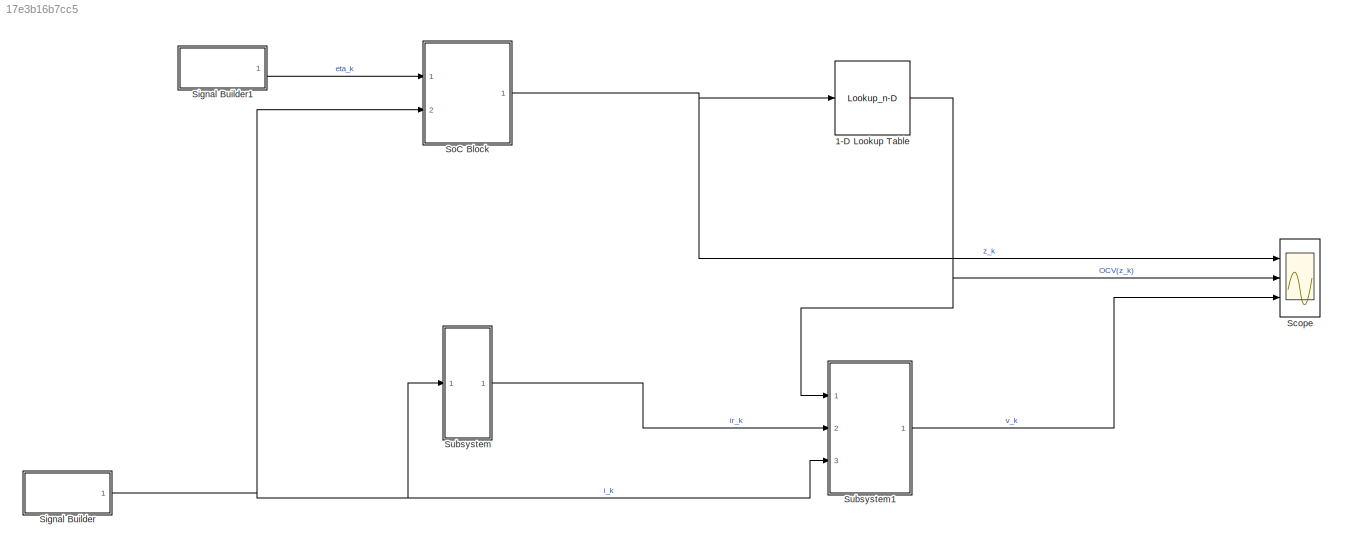
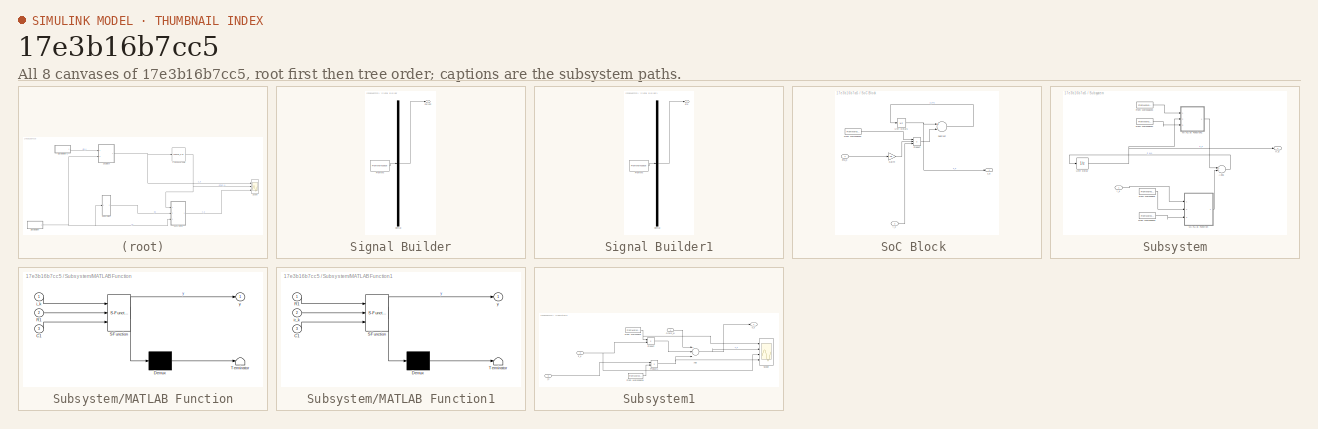
[diagram: thumbnail index - all 8 canvases of the model, root first then tree order]
MODEL slx_17e3b16b7cc5
KIND model
CONFIG AbsTol = auto
CONFIG EnableMultiTasking = off
CONFIG FixedStep = auto
CONFIG MaxStep = auto
CONFIG MinStep = auto
CONFIG RelTol = 1e-3
CONFIG SampleTimeConstraint = Unconstrained
CONFIG Solver = VariableStepAuto
CONFIG SolverName = VariableStepAuto
CONFIG StartTime = 0.0
CONFIG StopTime = 840
BLOCK [Lookup_n-D] 1-D Lookup Table
  BreakpointsForDimension1 = soc.soc
  InternalRulePriority = Speed
  LookupTableObject = Em
  NumberOfTableDimensions = 1
  Ports = [1, 1]
  RndMeth = Simplest
  Table = ocv.ocv
BLOCK [Scope] Scope
  Floating = off
  NumInputPorts = 3
  Ports = [3]
  ScopeSpecificationString = Simulink.scopes.TimeScopeBlockCfg('CurrentConfiguration', extmgr.ConfigurationSet(extmgr.Configuration('Core','General UI',true),extmgr.Configuration('Core','Source UI',true),extmgr.Configuration('Sources','WiredSimulink',true),extmgr.Configuration('Visuals','Time Domain',true,'SerializedDisplays',{struct('MinYLimReal','-14.4034','MaxYLimReal','112.71149','YLabelReal','','MinYLimMag','0.00000','Ma...<+2665ch>
BLOCK [SubSystem] Signal Builder
  ClipboardFcn = sigbuilder_block('clipboard');
  CloseFcn = sigbuilder_block('close');
  ContinueFcn = sigbuilder_block('continue');
  CopyFcn = sigbuilder_block('copy');
  DeleteFcn = sigbuilder_block('delete');
  LoadFcn = sigbuilder_block('load');
  MaskHideContents = on
  ModelCloseFcn = sigbuilder_block('modelClose');
  NameChangeFcn = sigbuilder_block('namechange');
  OpenFcn = sigbuilder_block('open',[430.2 182.4 550.8 400.2 ]);
  PauseFcn = sigbuilder_block('pause');
  Ports = [0, 1]
  PreSaveFcn = sigbuilder_block('preSave');
  RequestExecContextInheritance = off
  StartFcn = sigbuilder_block('start');
  StopFcn = sigbuilder_block('stop');
  Tag = STV Subsys
BLOCK [Outport] Signal Builder/Current
  IconDisplay = Port number
  Tag = STV Outport
BLOCK [Demux] Signal Builder/Demux
  Outputs = 1
  Ports = [1, 1]
  Tag = STV Demux
BLOCK [FromWorkspace] Signal Builder/FromWs
  SampleTime = 0
  Tag = STV FromWs
  VariableName = tuvar
  ZeroCross = on
BLOCK [SubSystem] Signal Builder1
  ClipboardFcn = sigbuilder_block('clipboard');
  CloseFcn = sigbuilder_block('close');
  ContinueFcn = sigbuilder_block('continue');
  CopyFcn = sigbuilder_block('copy');
  DeleteFcn = sigbuilder_block('delete');
  LoadFcn = sigbuilder_block('load');
  MaskHideContents = on
  ModelCloseFcn = sigbuilder_block('modelClose');
  NameChangeFcn = sigbuilder_block('namechange');
  OpenFcn = sigbuilder_block('open',[402.6 159.6 550.8 400.2 ]);
  PauseFcn = sigbuilder_block('pause');
  Ports = [0, 1]
  PreSaveFcn = sigbuilder_block('preSave');
  RequestExecContextInheritance = off
  StartFcn = sigbuilder_block('start');
  StopFcn = sigbuilder_block('stop');
  Tag = STV Subsys
BLOCK [Demux] Signal Builder1/Demux
  Outputs = 1
  Ports = [1, 1]
  Tag = STV Demux
BLOCK [FromWorkspace] Signal Builder1/FromWs
  SampleTime = 0
  Tag = STV FromWs
  VariableName = tuvar
  ZeroCross = on
BLOCK [Outport] Signal Builder1/eta
  IconDisplay = Port number
  Tag = STV Outport
BLOCK [SubSystem] SoC Block 
  Ports = [2, 1]
  RequestExecContextInheritance = off
BLOCK [FromWorkspace] SoC Block /From Workspace2
  SampleTime = 0
  VariableName = deltat
  ZeroCross = on
BLOCK [Gain] SoC Block /Gain4
  Gain = 1/Q
  OutDataTypeStr = Inherit: Inherit via internal rule
  ParamDataTypeStr = Inherit: Inherit via internal rule
  SaturateOnIntegerOverflow = off
BLOCK [Product] SoC Block /Product
  InputSameDT = off
  Inputs = 3
  OutDataTypeStr = Inherit: Inherit via internal rule
  Ports = [3, 1]
  RndMeth = Floor
  SaturateOnIntegerOverflow = off
BLOCK [Sum] SoC Block /Subtract
  InputSameDT = off
  Inputs = +-
  OutDataTypeStr = Inherit: Inherit via internal rule
  Ports = [2, 1]
  SaturateOnIntegerOverflow = off
BLOCK [UnitDelay] SoC Block /Unit Delay1
  HasFrameUpgradeWarning = on
  InitialCondition = 100
BLOCK [Inport] SoC Block /eta_k
  IconDisplay = Port number
BLOCK [Inport] SoC Block /i_k
  IconDisplay = Port number
  Port = 2
BLOCK [Outport] SoC Block /z_k
  IconDisplay = Port number
BLOCK [SubSystem] Subsystem
  Ports = [1, 1]
  RequestExecContextInheritance = off
BLOCK [Sum] Subsystem/Add1
  InputSameDT = off
  OutDataTypeStr = Inherit: Inherit via internal rule
  Ports = [2, 1]
  SaturateOnIntegerOverflow = off
BLOCK [FromWorkspace] Subsystem/From Workspace
  SampleTime = 0
  VariableName = out.R1
  ZeroCross = on
BLOCK [FromWorkspace] Subsystem/From Workspace1
  SampleTime = 0
  VariableName = out.C1
  ZeroCross = on
BLOCK [FromWorkspace] Subsystem/From Workspace3
  SampleTime = 0
  VariableName = out.R1
  ZeroCross = on
BLOCK [FromWorkspace] Subsystem/From Workspace4
  SampleTime = 0
  VariableName = out.C1
  ZeroCross = on
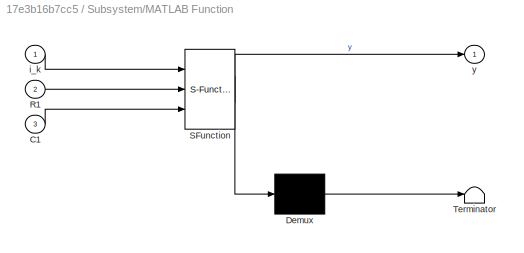
BLOCK [SubSystem] Subsystem/MATLAB Function
  ErrorFcn = Stateflow.Translate.translate
  PermitHierarchicalResolution = ExplicitOnly
  Ports = [3, 1]
  RequestExecContextInheritance = off
  SFBlockType = MATLAB Function
  TreatAsAtomicUnit = on
BLOCK [Demux] Subsystem/MATLAB Function/ Demux 
  Outputs = 1
  Ports = [1, 1]
BLOCK [S-Function] Subsystem/MATLAB Function/ SFunction 
  EnableBusSupport = on
  FunctionName = sf_sfun
  PortCounts = [3 2]
  Ports = [3, 2]
  SFcnIsStateOwnerBlock = off
  SFunctionDeploymentMode = off
  Tag = Stateflow S-Function model 2
BLOCK [Terminator] Subsystem/MATLAB Function/ Terminator 
BLOCK [Inport] Subsystem/MATLAB Function/C1
  IconDisplay = Port number
  Port = 3
BLOCK [Inport] Subsystem/MATLAB Function/R1
  IconDisplay = Port number
  Port = 2
BLOCK [Inport] Subsystem/MATLAB Function/i_k
  IconDisplay = Port number
BLOCK [Outport] Subsystem/MATLAB Function/y
  IconDisplay = Port number
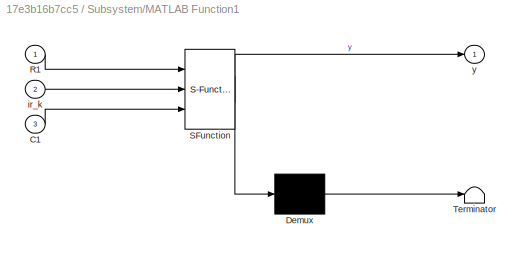
BLOCK [SubSystem] Subsystem/MATLAB Function1
  ErrorFcn = Stateflow.Translate.translate
  PermitHierarchicalResolution = ExplicitOnly
  Ports = [3, 1]
  RequestExecContextInheritance = off
  SFBlockType = MATLAB Function
  TreatAsAtomicUnit = on
BLOCK [Demux] Subsystem/MATLAB Function1/ Demux 
  Outputs = 1
  Ports = [1, 1]
BLOCK [S-Function] Subsystem/MATLAB Function1/ SFunction 
  EnableBusSupport = on
  FunctionName = sf_sfun
  PortCounts = [3 2]
  Ports = [3, 2]
  SFcnIsStateOwnerBlock = off
  SFunctionDeploymentMode = off
  Tag = Stateflow S-Function model 1
BLOCK [Terminator] Subsystem/MATLAB Function1/ Terminator 
BLOCK [Inport] Subsystem/MATLAB Function1/C1
  IconDisplay = Port number
  Port = 3
BLOCK [Inport] Subsystem/MATLAB Function1/R1
  IconDisplay = Port number
BLOCK [Inport] Subsystem/MATLAB Function1/ir_k
  IconDisplay = Port number
  Port = 2
BLOCK [Outport] Subsystem/MATLAB Function1/y
  IconDisplay = Port number
BLOCK [UnitDelay] Subsystem/Unit Delay
  HasFrameUpgradeWarning = on
  SampleTime = 0.5
BLOCK [Inport] Subsystem/i_k
  IconDisplay = Port number
BLOCK [Outport] Subsystem/ir_k
  IconDisplay = Port number
BLOCK [SubSystem] Subsystem1
  Ports = [3, 1]
  RequestExecContextInheritance = off
BLOCK [Sum] Subsystem1/Add
  InputSameDT = off
  Inputs = +--
  OutDataTypeStr = Inherit: Inherit via internal rule
  Ports = [3, 1]
  SaturateOnIntegerOverflow = off
BLOCK [FromWorkspace] Subsystem1/From Workspace
  SampleTime = 0
  VariableName = out.R1
  ZeroCross = on
BLOCK [FromWorkspace] Subsystem1/From Workspace1
  SampleTime = 0
  VariableName = out.R0
  ZeroCross = on
BLOCK [Inport] Subsystem1/OCV(z_k)
  IconDisplay = Port number
BLOCK [Product] Subsystem1/Product
  InputSameDT = off
  OutDataTypeStr = Inherit: Inherit via internal rule
  Ports = [2, 1]
  RndMeth = Floor
  SaturateOnIntegerOverflow = off
BLOCK [Product] Subsystem1/Product1
  InputSameDT = off
  OutDataTypeStr = Inherit: Inherit via internal rule
  Ports = [2, 1]
  RndMeth = Floor
  SaturateOnIntegerOverflow = off
BLOCK [Scope] Subsystem1/Scope
  Floating = off
  NumInputPorts = 4
  Ports = [4]
  ScopeSpecificationString = Simulink.scopes.TimeScopeBlockCfg('CurrentConfiguration', extmgr.ConfigurationSet(extmgr.Configuration('Core','General UI',true),extmgr.Configuration('Core','Source UI',true),extmgr.Configuration('Sources','WiredSimulink',true,'DataLoggingVariableName','ScopeData1'),extmgr.Configuration('Visuals','Time Domain',true,'SerializedDisplays',{struct('MinYLimReal','0.12972','MaxYLimReal','0.1482','YLabel...<+3420ch>
BLOCK [Inport] Subsystem1/i_k
  IconDisplay = Port number
  Port = 3
BLOCK [Inport] Subsystem1/ir_k
  IconDisplay = Port number
  Port = 2
BLOCK [Outport] Subsystem1/v_k
  IconDisplay = Port number
NET 1-D Lookup Table:1 -> Scope:2, Subsystem1:1
LINE Signal Builder1:1 -> SoC Block :1
NET Signal Builder:1 -> SoC Block :2, Subsystem1:3, Subsystem:1
LINE SoC Block /From Workspace2:1 -> SoC Block /Product:1
LINE SoC Block /Gain4:1 -> SoC Block /Product:2
LINE SoC Block /Product:1 -> SoC Block /Subtract:2
LINE SoC Block /Subtract:1 -> SoC Block /Unit Delay1:1
NET SoC Block /Unit Delay1:1 -> SoC Block /Subtract:1, SoC Block /z_k:1
LINE SoC Block /eta_k:1 -> SoC Block /Gain4:1
LINE SoC Block /i_k:1 -> SoC Block /Product:3
NET SoC Block :1 -> 1-D Lookup Table:1, Scope:1
LINE Subsystem/Add1:1 -> Subsystem/Unit Delay:1
LINE Subsystem/From Workspace1:1 -> Subsystem/MATLAB Function:3
LINE Subsystem/From Workspace3:1 -> Subsystem/MATLAB Function1:1
LINE Subsystem/From Workspace4:1 -> Subsystem/MATLAB Function1:3
LINE Subsystem/From Workspace:1 -> Subsystem/MATLAB Function:2
LINE Subsystem/MATLAB Function1:1 -> Subsystem/Add1:1
LINE Subsystem/MATLAB Function:1 -> Subsystem/Add1:2
NET Subsystem/Unit Delay:1 -> Subsystem/MATLAB Function1:2, Subsystem/ir_k:1
LINE Subsystem/i_k:1 -> Subsystem/MATLAB Function:1
NET Subsystem1/Add:1 -> Subsystem1/Scope:2, Subsystem1/v_k:1
LINE Subsystem1/From Workspace1:1 -> Subsystem1/Product1:2
NET Subsystem1/From Workspace:1 -> Subsystem1/Product:1, Subsystem1/Scope:1
LINE Subsystem1/OCV(z_k):1 -> Subsystem1/Add:1
NET Subsystem1/Product1:1 -> Subsystem1/Add:3, Subsystem1/Scope:4
LINE Subsystem1/Product:1 -> Subsystem1/Add:2
LINE Subsystem1/i_k:1 -> Subsystem1/Product1:1
NET Subsystem1/ir_k:1 -> Subsystem1/Product:2, Subsystem1/Scope:3
LINE Subsystem1:1 -> Scope:3
LINE Subsystem:1 -> Subsystem1:2
note: NET lines group one-source signal fan-out (src -> all destinations, sorted); 1:1 wires keep LINE
CHART Subsystem/MATLAB Function1 states=1 transitions=1
  STATE_LABEL 'eML_blk_kernel()'
  STATE_LABEL 'SCRIPT:\nfunction y = fcn(R1,ir_k, C1)\ndeltat = 0.010737239;\ny =ir_k*(exp(-deltat/(R1*C1)));\n'
CHART Subsystem/MATLAB Function states=1 transitions=1
  STATE_LABEL 'eML_blk_kernel()'
  STATE_LABEL 'SCRIPT:\nfunction y = fcn(i_k, R1,C1)\ndeltat= 0.010737239;\ny = i_k*(1-exp(-deltat/(R1*C1)));\n'
